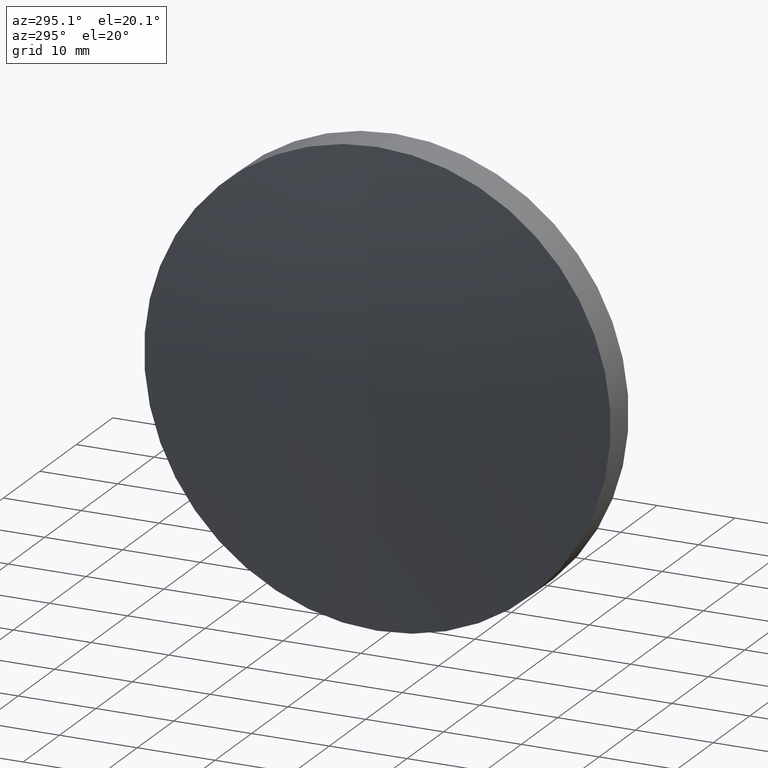
[diagram: clean part render]
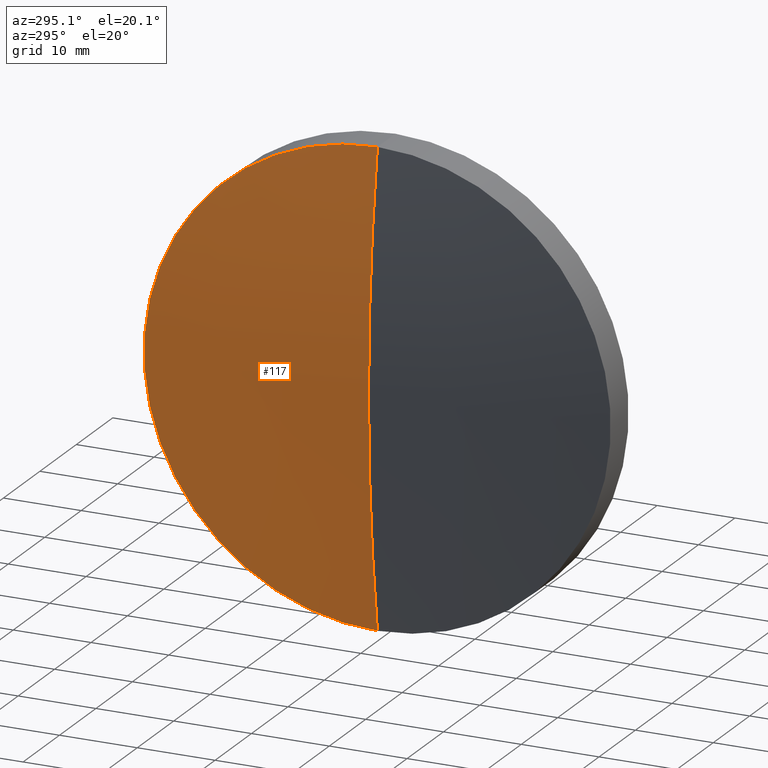
[diagram: same view with one face highlighted and labeled with its STEP entity id]
A machine part, auxiliary view. The second image highlights one B-rep face of the part: STEP entity #117.
In plain terms, the highlighted spherical surface has radius 186.1 mm.
Its self-contained STEP definition (entity closure, byte-faithful):
#1 = DIRECTION ( 'NONE',  ( 0.0000000000000000000, 0.0000000000000000000, 1.000000000000000000 ) ) ;
#17 = EDGE_CURVE ( 'NONE', #201, #33, #265, .T. ) ;
#21 = CARTESIAN_POINT ( 'NONE',  ( 518.2226255512254100, 0.0000000000000000000, -3.517525629549590600E-015 ) ) ;
#23 = CIRCLE ( 'NONE', #49, 186.1000000000000200 ) ;
#33 = VERTEX_POINT ( 'NONE', #77 ) ;
#36 = FACE_OUTER_BOUND ( 'NONE', #174, .T. ) ;
#49 = AXIS2_PLACEMENT_3D ( 'NONE', #274, #76, #269 ) ;
#54 = AXIS2_PLACEMENT_3D ( 'NONE', #21, #100, #207 ) ;
#76 = DIRECTION ( 'NONE',  ( 0.0000000000000000000, -1.000000000000000000, 0.0000000000000000000 ) ) ;
#77 = CARTESIAN_POINT ( 'NONE',  ( 332.1226255512253800, 0.0000000000000000000, 7.877812836516531800E-015 ) ) ;
#87 = VERTEX_POINT ( 'NONE', #343 ) ;
#100 = DIRECTION ( 'NONE',  ( 0.0000000000000000000, 1.000000000000000000, 0.0000000000000000000 ) ) ;
#105 = SPHERICAL_SURFACE ( 'NONE', #54, 186.1000000000000200 ) ;
#110 = AXIS2_PLACEMENT_3D ( 'NONE', #291, #236, #1 ) ;
#111 = CIRCLE ( 'NONE', #110, 29.99999999999999600 ) ;
#116 = ORIENTED_EDGE ( 'NONE', *, *, #241, .F. ) ;
#117 = ADVANCED_FACE ( 'NONE', ( #36 ), #105, .T. ) ;
#174 = EDGE_LOOP ( 'NONE', ( #307, #240, #116 ) ) ;
#195 = CARTESIAN_POINT ( 'NONE',  ( 518.2226255512254100, 0.0000000000000000000, -3.517525629549590600E-015 ) ) ;
#201 = VERTEX_POINT ( 'NONE', #254 ) ;
#207 = DIRECTION ( 'NONE',  ( 0.0000000000000000000, 0.0000000000000000000, 1.000000000000000000 ) ) ;
#225 = DIRECTION ( 'NONE',  ( 0.0000000000000000000, -1.224646799147353000E-016, 1.000000000000000000 ) ) ;
#236 = DIRECTION ( 'NONE',  ( -1.000000000000000000, -0.0000000000000000000, -0.0000000000000000000 ) ) ;
#240 = ORIENTED_EDGE ( 'NONE', *, *, #17, .T. ) ;
#241 = EDGE_CURVE ( 'NONE', #87, #33, #23, .T. ) ;
#254 = CARTESIAN_POINT ( 'NONE',  ( 334.5565971191825300, 3.673940397442056800E-015, -29.99999999999998200 ) ) ;
#265 = CIRCLE ( 'NONE', #297, 186.1000000000000200 ) ;
#269 = DIRECTION ( 'NONE',  ( 0.0000000000000000000, 0.0000000000000000000, -1.000000000000000000 ) ) ;
#274 = CARTESIAN_POINT ( 'NONE',  ( 518.2226255512254100, 0.0000000000000000000, -3.517525629549590600E-015 ) ) ;
#291 = CARTESIAN_POINT ( 'NONE',  ( 334.5565971191825300, 0.0000000000000000000, 0.0000000000000000000 ) ) ;
#293 = DIRECTION ( 'NONE',  ( -0.0000000000000000000, 1.000000000000000000, 1.224646799147353200E-016 ) ) ;
#297 = AXIS2_PLACEMENT_3D ( 'NONE', #195, #293, #225 ) ;
#307 = ORIENTED_EDGE ( 'NONE', *, *, #324, .T. ) ;
#324 = EDGE_CURVE ( 'NONE', #87, #201, #111, .T. ) ;
#343 = CARTESIAN_POINT ( 'NONE',  ( 334.5565971191825300, 0.0000000000000000000, 29.99999999999997900 ) ) ;